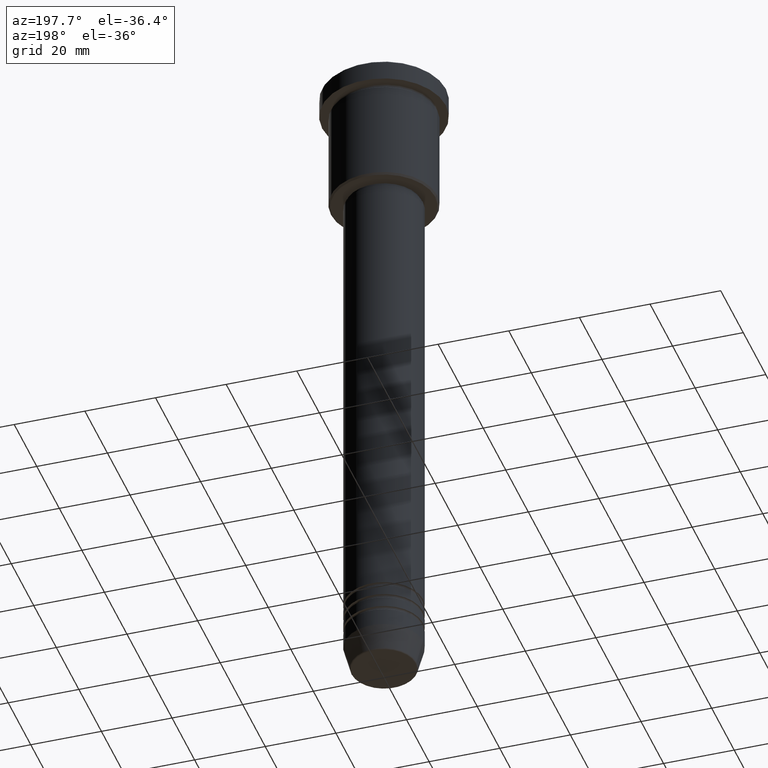
[diagram: clean part render]
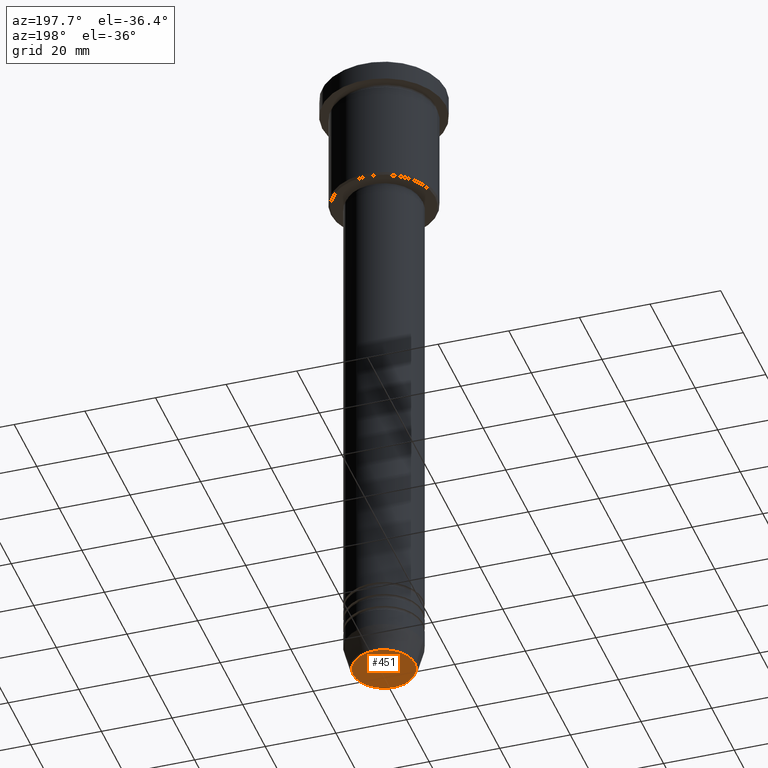
[diagram: same view with one face highlighted and labeled with its STEP entity id]
A machine part, auxiliary view. The second image highlights one B-rep face of the part: STEP entity #451.
In plain terms, the highlighted planar face has unit normal (0, -0, 1).
Its self-contained STEP definition (entity closure, byte-faithful):
#46 = EDGE_CURVE ( 'NONE', #863, #182, #328, .T. ) ;
#68 = ORIENTED_EDGE ( 'NONE', *, *, #46, .T. ) ;
#70 = FACE_OUTER_BOUND ( 'NONE', #1158, .T. ) ;
#77 = CARTESIAN_POINT ( 'NONE',  ( 8.740692158992656502, 0.000000000000000000, -191.0000000000000000 ) ) ;
#94 = ORIENTED_EDGE ( 'NONE', *, *, #1037, .T. ) ;
#182 = VERTEX_POINT ( 'NONE', #77 ) ;
#328 = CIRCLE ( 'NONE', #1028, 8.740692158992656502 ) ;
#336 = CARTESIAN_POINT ( 'NONE',  ( -8.740692158992656502, 1.099999016768739653E-15, -191.0000000000000000 ) ) ;
#337 = DIRECTION ( 'NONE',  ( 1.000000000000000000, 0.000000000000000000, 0.000000000000000000 ) ) ;
#436 = DIRECTION ( 'NONE',  ( 0.000000000000000000, -0.000000000000000000, 1.000000000000000000 ) ) ;
#451 = ADVANCED_FACE ( 'NONE', ( #70 ), #1147, .F. ) ;
#507 = DIRECTION ( 'NONE',  ( 0.000000000000000000, 0.000000000000000000, -1.000000000000000000 ) ) ;
#599 = CIRCLE ( 'NONE', #673, 8.740692158992656502 ) ;
#646 = CARTESIAN_POINT ( 'NONE',  ( 0.000000000000000000, 0.000000000000000000, -191.0000000000000000 ) ) ;
#673 = AXIS2_PLACEMENT_3D ( 'NONE', #646, #827, #819 ) ;
#793 = DIRECTION ( 'NONE',  ( 1.000000000000000000, 0.000000000000000000, 0.000000000000000000 ) ) ;
#819 = DIRECTION ( 'NONE',  ( 1.000000000000000000, 0.000000000000000000, 0.000000000000000000 ) ) ;
#827 = DIRECTION ( 'NONE',  ( 0.000000000000000000, 0.000000000000000000, -1.000000000000000000 ) ) ;
#863 = VERTEX_POINT ( 'NONE', #336 ) ;
#955 = CARTESIAN_POINT ( 'NONE',  ( 0.000000000000000000, 0.000000000000000000, -191.0000000000000000 ) ) ;
#978 = CARTESIAN_POINT ( 'NONE',  ( 0.000000000000000000, 0.000000000000000000, -191.0000000000000000 ) ) ;
#1028 = AXIS2_PLACEMENT_3D ( 'NONE', #955, #507, #793 ) ;
#1030 = AXIS2_PLACEMENT_3D ( 'NONE', #978, #436, #337 ) ;
#1037 = EDGE_CURVE ( 'NONE', #182, #863, #599, .T. ) ;
#1147 = PLANE ( 'NONE',  #1030 ) ;
#1158 = EDGE_LOOP ( 'NONE', ( #94, #68 ) ) ;